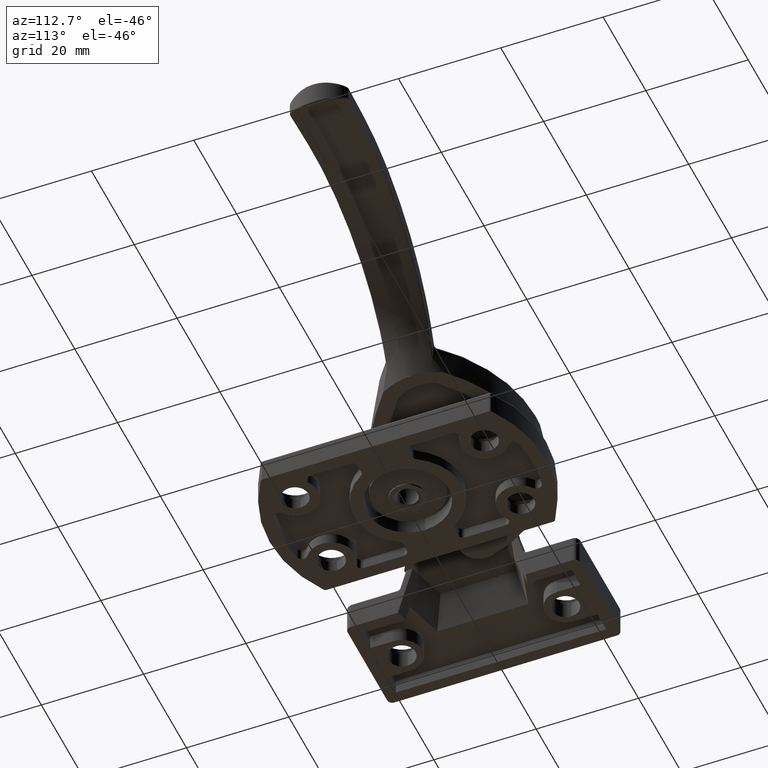
[diagram: clean part render]
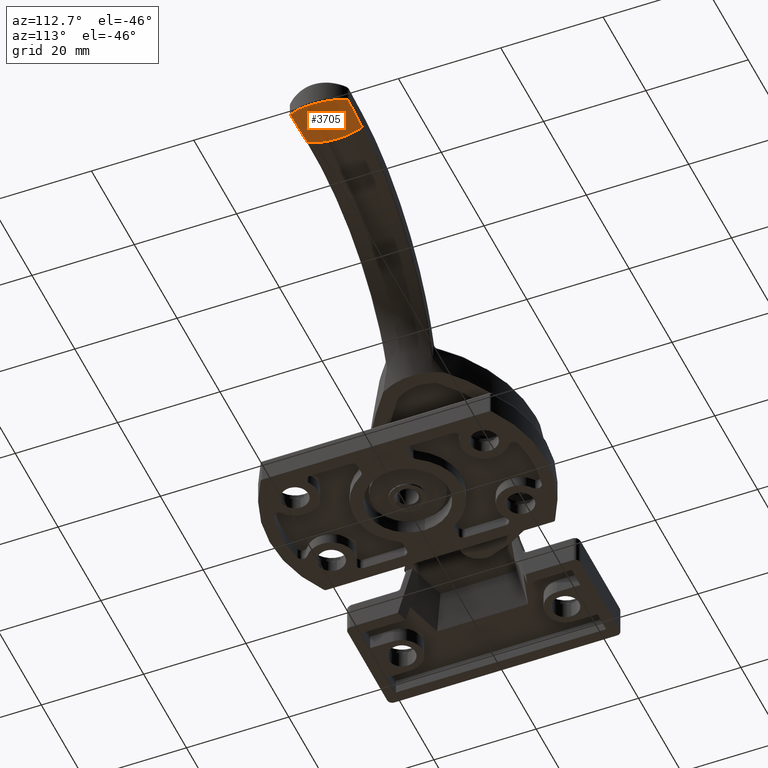
[diagram: same view with one face highlighted and labeled with its STEP entity id]
A machine part, auxiliary view. The second image highlights one B-rep face of the part: STEP entity #3705.
In plain terms, the highlighted face is a freeform B-spline surface patch.
Its self-contained STEP definition (entity closure, byte-faithful):
#54=ELLIPSE('',#4107,11.8666514312251,11.5347593259757);
#55=ELLIPSE('',#4108,11.8568372572895,11.5166888688918);
#95=B_SPLINE_SURFACE_WITH_KNOTS('',3,1,((#7553,#7554),(#7555,#7556),(#7557,
#7558),(#7559,#7560),(#7561,#7562),(#7563,#7564),(#7565,#7566),(#7567,#7568)),
 .UNSPECIFIED.,.F.,.F.,.F.,(4,2,2,4),(2,2),(-1.25840930338303,-0.862945371059526,
-0.466624751992605,0.),(0.,0.999999999999999),.UNSPECIFIED.);
#154=B_SPLINE_CURVE_WITH_KNOTS('',3,(#6974,#6975,#6976,#6977),
 .UNSPECIFIED.,.F.,.F.,(4,4),(-0.060183725778021,0.),.UNSPECIFIED.);
#158=B_SPLINE_CURVE_WITH_KNOTS('',3,(#7040,#7041,#7042,#7043),
 .UNSPECIFIED.,.F.,.F.,(4,4),(-0.0597155855826239,-7.09631366085564E-13),
 .UNSPECIFIED.);
#160=B_SPLINE_CURVE_WITH_KNOTS('',3,(#7087,#7088,#7089,#7090,#7091,#7092,
#7093,#7094,#7095,#7096,#7097,#7098,#7099,#7100,#7101,#7102,#7103,#7104,
#7105),.UNSPECIFIED.,.F.,.F.,(4,3,3,3,3,3,4),(0.0587934555353295,0.397287890911909,
0.49632573572323,0.566535108600199,0.887004461245237,0.905029543976778,
1.24352397935336),.UNSPECIFIED.);
#161=B_SPLINE_CURVE_WITH_KNOTS('',3,(#7127,#7128,#7129,#7130),
 .UNSPECIFIED.,.F.,.F.,(4,4),(0.291969250551463,1.00049148310518),
 .UNSPECIFIED.);
#1020=FACE_OUTER_BOUND('',#1310,.T.);
#1310=EDGE_LOOP('',(#3280,#3281,#3282,#3283,#3284,#3285,#3286));
#1543=CIRCLE('',#4104,9447.11360766496);
#1858=VERTEX_POINT('',#6966);
#1859=VERTEX_POINT('',#6972);
#1865=VERTEX_POINT('',#7037);
#1866=VERTEX_POINT('',#7039);
#1867=VERTEX_POINT('',#7126);
#1878=VERTEX_POINT('',#7403);
#1885=VERTEX_POINT('',#7569);
#2323=EDGE_CURVE('',#1859,#1858,#154,.T.);
#2330=EDGE_CURVE('',#1865,#1866,#158,.T.);
#2333=EDGE_CURVE('',#1858,#1865,#160,.T.);
#2334=EDGE_CURVE('',#1866,#1867,#161,.T.);
#2358=EDGE_CURVE('',#1878,#1859,#1543,.T.);
#2369=EDGE_CURVE('',#1878,#1885,#54,.T.);
#2370=EDGE_CURVE('',#1885,#1867,#55,.T.);
#3280=ORIENTED_EDGE('',*,*,#2334,.F.);
#3281=ORIENTED_EDGE('',*,*,#2330,.F.);
#3282=ORIENTED_EDGE('',*,*,#2333,.F.);
#3283=ORIENTED_EDGE('',*,*,#2323,.F.);
#3284=ORIENTED_EDGE('',*,*,#2358,.F.);
#3285=ORIENTED_EDGE('',*,*,#2369,.T.);
#3286=ORIENTED_EDGE('',*,*,#2370,.T.);
#3705=ADVANCED_FACE('',(#1020),#95,.F.);
#4104=AXIS2_PLACEMENT_3D('',#7438,#5054,#5055);
#4107=AXIS2_PLACEMENT_3D('',#7570,#5066,#5067);
#4108=AXIS2_PLACEMENT_3D('',#7571,#5068,#5069);
#5054=DIRECTION('center_axis',(-0.0291068091408285,-0.999575408483976,-0.00134030434288097));
#5055=DIRECTION('ref_axis',(0.0164802284730294,0.000860800445726191,-0.999863821273712));
#5066=DIRECTION('center_axis',(1.,-1.10912339588359E-9,-4.41116155984891E-9));
#5067=DIRECTION('ref_axis',(1.20567337356368E-9,0.999759108748236,0.0219482225916467));
#5068=DIRECTION('center_axis',(1.,5.46227341539256E-12,-2.54770435173403E-11));
#5069=DIRECTION('ref_axis',(-5.87376169051996E-12,0.999869104952634,-0.0161793992848612));
#6966=CARTESIAN_POINT('',(65.6079925524112,4.63643325196991,29.4374312587556));
#6972=CARTESIAN_POINT('',(65.0817545675371,4.41446478928194,29.559716640193));
#6974=CARTESIAN_POINT('Ctrl Pts',(65.081754567542,4.4144647892157,29.5597166401928));
#6975=CARTESIAN_POINT('Ctrl Pts',(65.282260291005,4.40862180340785,29.5630168672022));
#6976=CARTESIAN_POINT('Ctrl Pts',(65.4788823957311,4.49768836222435,29.5119615629983));
#6977=CARTESIAN_POINT('Ctrl Pts',(65.6079925524112,4.63643349344748,29.4374317082887));
#7037=CARTESIAN_POINT('',(65.6079925316709,15.3445133812356,29.0626223021774));
#7039=CARTESIAN_POINT('',(65.0817545675843,15.5664548600898,29.1650309384762));
#7040=CARTESIAN_POINT('Ctrl Pts',(65.6079925316708,15.3445132631092,29.0626225651864));
#7041=CARTESIAN_POINT('Ctrl Pts',(65.4772807141649,15.4849626563519,29.1257031065093));
#7042=CARTESIAN_POINT('Ctrl Pts',(65.2807082332212,15.5722519003628,29.1677777418442));
#7043=CARTESIAN_POINT('Ctrl Pts',(65.0817545675733,15.5664548600894,29.165030938476));
#7087=CARTESIAN_POINT('Ctrl Pts',(65.6079925524112,4.63643276901478,29.4374303596893));
#7088=CARTESIAN_POINT('Ctrl Pts',(66.3341643496329,5.41679493450223,29.0182400033837));
#7089=CARTESIAN_POINT('Ctrl Pts',(66.9111827543636,6.36433539968081,28.6254658772641));
#7090=CARTESIAN_POINT('Ctrl Pts',(67.2750714786673,7.42710424439826,28.3607608203259));
#7091=CARTESIAN_POINT('Ctrl Pts',(67.3815392702754,7.73805274136938,28.2833125210041));
#7092=CARTESIAN_POINT('Ctrl Pts',(67.4697620887244,8.05839073647631,28.2166584889719));
#7093=CARTESIAN_POINT('Ctrl Pts',(67.5375932950774,8.38563438527644,28.1626545449115));
#7094=CARTESIAN_POINT('Ctrl Pts',(67.5856798267322,8.61762218149716,28.1243703611978));
#7095=CARTESIAN_POINT('Ctrl Pts',(67.6235183520385,8.85256546464181,28.09251739794));
#7096=CARTESIAN_POINT('Ctrl Pts',(67.6503440835162,9.08946205125058,28.0674931078945));
#7097=CARTESIAN_POINT('Ctrl Pts',(67.7727896267336,10.1707720337136,27.9532702099724));
#7098=CARTESIAN_POINT('Ctrl Pts',(67.6657892570192,11.2925657396799,27.9898807991691));
#7099=CARTESIAN_POINT('Ctrl Pts',(67.3505112062855,12.3251424467815,28.1575091287562));
#7100=CARTESIAN_POINT('Ctrl Pts',(67.3327781129303,12.3832206387164,28.1669375327019));
#7101=CARTESIAN_POINT('Ctrl Pts',(67.3143861123694,12.4409917627725,28.1767483338955));
#7102=CARTESIAN_POINT('Ctrl Pts',(67.2953389712673,12.4984356077114,28.1869273246057));
#7103=CARTESIAN_POINT('Ctrl Pts',(66.9376512219833,13.5771780550039,28.3780793855681));
#7104=CARTESIAN_POINT('Ctrl Pts',(66.348925687684,14.5483836726174,28.7050523380433));
#7105=CARTESIAN_POINT('Ctrl Pts',(65.6079925316708,15.3445136174884,29.0626217761594));
#7126=CARTESIAN_POINT('',(58.0000000001591,15.360112517714,29.0696420645821));
#7127=CARTESIAN_POINT('Ctrl Pts',(65.0817545676135,15.5664548600906,29.1650309384766));
#7128=CARTESIAN_POINT('Ctrl Pts',(62.7211799540475,15.4976732870998,29.1324402633297));
#7129=CARTESIAN_POINT('Ctrl Pts',(60.3605948380574,15.4288925090319,29.1006512347392));
#7130=CARTESIAN_POINT('Ctrl Pts',(58.0000000003168,15.3601125177151,29.0696420645826));
#7403=CARTESIAN_POINT('',(58.0000000001297,4.62083215996655,29.4458267680626));
#7438=CARTESIAN_POINT('Origin',(-90.6088360974539,-3.71761481508789,9475.38682840696));
#7553=CARTESIAN_POINT('Ctrl Pts',(58.,16.0506115789574,29.4079831816533));
#7554=CARTESIAN_POINT('Ctrl Pts',(68.,16.0506115789574,29.4079831816533));
#7555=CARTESIAN_POINT('Ctrl Pts',(58.,14.8860200596966,28.790222882941));
#7556=CARTESIAN_POINT('Ctrl Pts',(68.,14.8860200596966,28.790222882941));
#7557=CARTESIAN_POINT('Ctrl Pts',(57.9999999999922,13.6265037193013,28.3687718996492));
#7558=CARTESIAN_POINT('Ctrl Pts',(67.9999999999922,13.6265037193013,28.3687718996492));
#7559=CARTESIAN_POINT('Ctrl Pts',(57.9999999999922,11.0209620576257,27.945788702941));
#7560=CARTESIAN_POINT('Ctrl Pts',(67.9999999999922,11.0209620576257,27.945788702941));
#7561=CARTESIAN_POINT('Ctrl Pts',(57.9999999972378,9.68925591757692,27.9475221670505));
#7562=CARTESIAN_POINT('Ctrl Pts',(67.9999999972378,9.68925591757692,27.9475221670505));
#7563=CARTESIAN_POINT('Ctrl Pts',(57.9999999972378,6.85076073768754,28.4159496994793));
#7564=CARTESIAN_POINT('Ctrl Pts',(67.9999999972378,6.85076073768754,28.4159496994793));
#7565=CARTESIAN_POINT('Ctrl Pts',(58.,5.37700834622611,28.9614078890116));
#7566=CARTESIAN_POINT('Ctrl Pts',(68.,5.37700834622611,28.9614078890116));
#7567=CARTESIAN_POINT('Ctrl Pts',(58.,4.05061157895743,29.7738056062816));
#7568=CARTESIAN_POINT('Ctrl Pts',(68.,4.05061157895743,29.7738056062816));
#7569=CARTESIAN_POINT('',(58.,10.3711060445944,28.0000008213765));
#7570=CARTESIAN_POINT('Origin',(58.0000000508989,10.3859464921652,39.5349231481003));
#7571=CARTESIAN_POINT('Origin',(58.0000000002935,10.3598901293794,39.5167792250275));